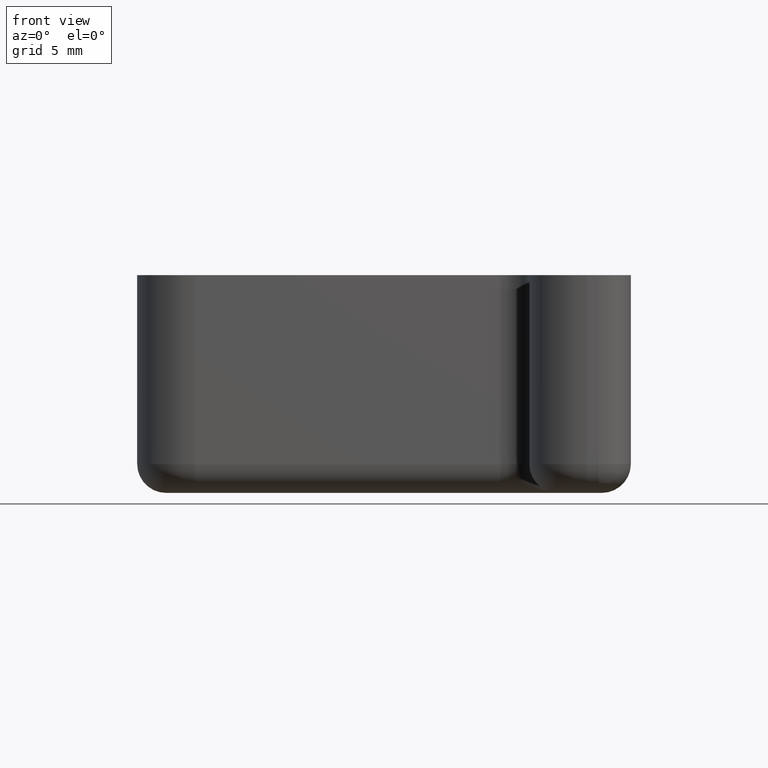
[diagram: clean part render]
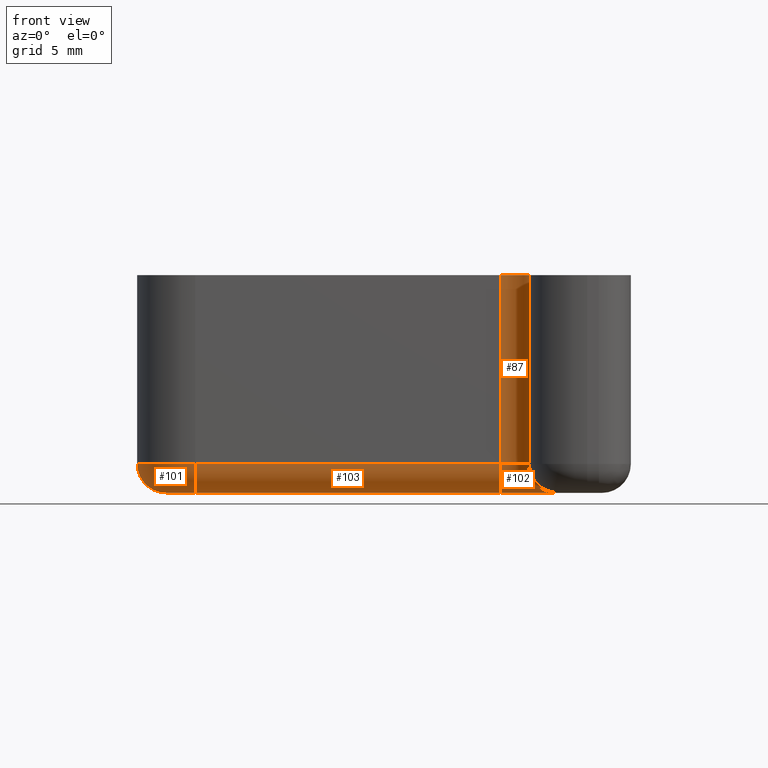
[diagram: same view with one multi-face feature highlighted, each face labeled with its STEP entity id]
A machine part, front view. The highlighted faces form ONE feature: a constant-radius fillet chain: 4 tangent blend faces with common blend radius 2 mm. The faces share edges in the B-rep.
Their STEP definitions:
[1] entity #102 (Torus):
#102 = ADVANCED_FACE( '', ( #170 ), #171, .T. );
#170 = FACE_OUTER_BOUND( '', #315, .T. );
#171 = TOROIDAL_SURFACE( '', #316, 4.00000000000000, 2.00000000000000 );
#315 = EDGE_LOOP( '', ( #555, #556, #557, #558 ) );
#316 = AXIS2_PLACEMENT_3D( '', #559, #560, #561 );
#555 = ORIENTED_EDGE( '', *, *, #725, .T. );
#556 = ORIENTED_EDGE( '', *, *, #708, .F. );
#557 = ORIENTED_EDGE( '', *, *, #723, .F. );
#558 = ORIENTED_EDGE( '', *, *, #695, .F. );
#559 = CARTESIAN_POINT( '', ( -7.00000000000000, -7.00000000000000, -13.0000000000000 ) );
#560 = DIRECTION( '', ( 0.000000000000000, 0.000000000000000, 1.00000000000000 ) );
#561 = DIRECTION( '', ( -1.00000000000000, 1.22460635382238E-016, 0.000000000000000 ) );
#695 = EDGE_CURVE( '', #833, #836, #837, .F. );
#708 = EDGE_CURVE( '', #857, #859, #860, .T. );
#723 = EDGE_CURVE( '', #836, #857, #879, .T. );
#725 = EDGE_CURVE( '', #833, #859, #881, .T. );
#833 = VERTEX_POINT( '', #1021 );
#836 = VERTEX_POINT( '', #1026 );
#837 = CIRCLE( '', #1027, 2.00000000000000 );
#857 = VERTEX_POINT( '', #1054 );
#859 = VERTEX_POINT( '', #1057 );
#860 = CIRCLE( '', #1058, 4.00000000000000 );
#879 = CIRCLE( '', #1080, 2.00000000000000 );
#881 = CIRCLE( '', #1082, 2.00000000000000 );
#1021 = CARTESIAN_POINT( '', ( -7.00000000000001, -5.00000000000000, -13.0000000000000 ) );
#1026 = CARTESIAN_POINT( '', ( -5.00000000000000, -6.99999999999999, -13.0000000000000 ) );
#1027 = AXIS2_PLACEMENT_3D( '', #1201, #1202, #1203 );
#1054 = CARTESIAN_POINT( '', ( -3.00000000000000, -7.00000000000000, -15.0000000000000 ) );
#1057 = CARTESIAN_POINT( '', ( -7.00000000000002, -3.00000000000000, -15.0000000000000 ) );
#1058 = AXIS2_PLACEMENT_3D( '', #1224, #1225, #1226 );
#1080 = AXIS2_PLACEMENT_3D( '', #1263, #1264, #1265 );
#1082 = AXIS2_PLACEMENT_3D( '', #1269, #1270, #1271 );
#1201 = CARTESIAN_POINT( '', ( -7.00000000000000, -7.00000000000000, -13.0000000000000 ) );
#1202 = DIRECTION( '', ( 0.000000000000000, 0.000000000000000, 1.00000000000000 ) );
#1203 = DIRECTION( '', ( -1.00000000000000, 1.22460635382238E-016, 0.000000000000000 ) );
#1224 = CARTESIAN_POINT( '', ( -7.00000000000000, -7.00000000000000, -15.0000000000000 ) );
#1225 = DIRECTION( '', ( 0.000000000000000, 0.000000000000000, 1.00000000000000 ) );
#1226 = DIRECTION( '', ( -1.00000000000000, 1.22460635382238E-016, 0.000000000000000 ) );
#1263 = CARTESIAN_POINT( '', ( -3.00000000000000, -6.99999999999999, -13.0000000000000 ) );
#1264 = DIRECTION( '', ( 1.61226284059457E-015, -1.00000000000000, 1.73472347597681E-015 ) );
#1265 = DIRECTION( '', ( 2.12435339080604E-031, 1.73472347597681E-015, 1.00000000000000 ) );
#1269 = CARTESIAN_POINT( '', ( -7.00000000000001, -3.00000000000000, -13.0000000000000 ) );
#1270 = DIRECTION( '', ( 1.00000000000000, -1.22460635382238E-016, -3.46944695195361E-015 ) );
#1271 = DIRECTION( '', ( 3.46944695195361E-015, -4.24870678161208E-031, 1.00000000000000 ) );
[2] entity #87 (Cylinder):
#87 = ADVANCED_FACE( '', ( #140 ), #141, .F. );
#140 = FACE_OUTER_BOUND( '', #219, .T. );
#141 = CYLINDRICAL_SURFACE( '', #220, 2.00000000000000 );
#219 = EDGE_LOOP( '', ( #451, #452, #453, #454 ) );
#220 = AXIS2_PLACEMENT_3D( '', #455, #456, #457 );
#451 = ORIENTED_EDGE( '', *, *, #694, .F. );
#452 = ORIENTED_EDGE( '', *, *, #695, .T. );
#453 = ORIENTED_EDGE( '', *, *, #696, .T. );
#454 = ORIENTED_EDGE( '', *, *, #647, .F. );
#455 = CARTESIAN_POINT( '', ( -7.00000000000000, -7.00000000000000, -15.0000000000000 ) );
#456 = DIRECTION( '', ( 0.000000000000000, 0.000000000000000, -1.00000000000000 ) );
#457 = DIRECTION( '', ( 1.00000000000000, -1.83690953073357E-016, 0.000000000000000 ) );
#647 = EDGE_CURVE( '', #750, #752, #753, .T. );
#694 = EDGE_CURVE( '', #833, #750, #835, .T. );
#695 = EDGE_CURVE( '', #833, #836, #837, .F. );
#696 = EDGE_CURVE( '', #836, #752, #838, .T. );
#750 = VERTEX_POINT( '', #909 );
#752 = VERTEX_POINT( '', #912 );
#753 = CIRCLE( '', #913, 2.00000000000000 );
#833 = VERTEX_POINT( '', #1021 );
#835 = LINE( '', #1024, #1025 );
#836 = VERTEX_POINT( '', #1026 );
#837 = CIRCLE( '', #1027, 2.00000000000000 );
#838 = LINE( '', #1028, #1029 );
#909 = CARTESIAN_POINT( '', ( -7.00000000000001, -5.00000000000000, 0.000000000000000 ) );
#912 = CARTESIAN_POINT( '', ( -5.00000000000000, -6.99999999999999, 0.000000000000000 ) );
#913 = AXIS2_PLACEMENT_3D( '', #1117, #1118, #1119 );
#1021 = CARTESIAN_POINT( '', ( -7.00000000000001, -5.00000000000000, -13.0000000000000 ) );
#1024 = CARTESIAN_POINT( '', ( -7.00000000000001, -5.00000000000000, -15.0000000000000 ) );
#1025 = VECTOR( '', #1200, 1000.00000000000 );
#1026 = CARTESIAN_POINT( '', ( -5.00000000000000, -6.99999999999999, -13.0000000000000 ) );
#1027 = AXIS2_PLACEMENT_3D( '', #1201, #1202, #1203 );
#1028 = CARTESIAN_POINT( '', ( -5.00000000000000, -6.99999999999999, -15.0000000000000 ) );
#1029 = VECTOR( '', #1204, 1000.00000000000 );
#1117 = CARTESIAN_POINT( '', ( -7.00000000000000, -7.00000000000000, 0.000000000000000 ) );
#1118 = DIRECTION( '', ( 0.000000000000000, 0.000000000000000, -1.00000000000000 ) );
#1119 = DIRECTION( '', ( -6.83670784915046E-016, 1.00000000000000, 0.000000000000000 ) );
#1200 = DIRECTION( '', ( 0.000000000000000, 0.000000000000000, 1.00000000000000 ) );
#1201 = CARTESIAN_POINT( '', ( -7.00000000000000, -7.00000000000000, -13.0000000000000 ) );
#1202 = DIRECTION( '', ( 0.000000000000000, 0.000000000000000, 1.00000000000000 ) );
#1203 = DIRECTION( '', ( -1.00000000000000, 1.22460635382238E-016, 0.000000000000000 ) );
#1204 = DIRECTION( '', ( 0.000000000000000, 0.000000000000000, 1.00000000000000 ) );
[3] entity #103 (Cylinder):
#103 = ADVANCED_FACE( '', ( #172 ), #173, .T. );
#172 = FACE_OUTER_BOUND( '', #317, .T. );
#173 = CYLINDRICAL_SURFACE( '', #318, 2.00000000000000 );
#317 = EDGE_LOOP( '', ( #562, #563, #564, #565 ) );
#318 = AXIS2_PLACEMENT_3D( '', #566, #567, #568 );
#562 = ORIENTED_EDGE( '', *, *, #724, .F. );
#563 = ORIENTED_EDGE( '', *, *, #709, .F. );
#564 = ORIENTED_EDGE( '', *, *, #725, .F. );
#565 = ORIENTED_EDGE( '', *, *, #693, .F. );
#566 = CARTESIAN_POINT( '', ( -28.0000000000000, -2.99999999999999, -13.0000000000000 ) );
#567 = DIRECTION( '', ( 1.00000000000000, -1.22460635382238E-016, 0.000000000000000 ) );
#568 = DIRECTION( '', ( 0.000000000000000, 0.000000000000000, -1.00000000000000 ) );
#693 = EDGE_CURVE( '', #830, #833, #834, .T. );
#709 = EDGE_CURVE( '', #859, #861, #862, .F. );
#724 = EDGE_CURVE( '', #861, #830, #880, .T. );
#725 = EDGE_CURVE( '', #833, #859, #881, .T. );
#830 = VERTEX_POINT( '', #1017 );
#833 = VERTEX_POINT( '', #1021 );
#834 = LINE( '', #1022, #1023 );
#859 = VERTEX_POINT( '', #1057 );
#861 = VERTEX_POINT( '', #1059 );
#862 = LINE( '', #1060, #1061 );
#880 = CIRCLE( '', #1081, 2.00000000000000 );
#881 = CIRCLE( '', #1082, 2.00000000000000 );
#1017 = CARTESIAN_POINT( '', ( -28.0000000000000, -5.00000000000000, -13.0000000000000 ) );
#1021 = CARTESIAN_POINT( '', ( -7.00000000000001, -5.00000000000000, -13.0000000000000 ) );
#1022 = CARTESIAN_POINT( '', ( -7.00000000000001, -5.00000000000000, -13.0000000000000 ) );
#1023 = VECTOR( '', #1199, 1000.00000000000 );
#1057 = CARTESIAN_POINT( '', ( -7.00000000000002, -3.00000000000000, -15.0000000000000 ) );
#1059 = CARTESIAN_POINT( '', ( -28.0000000000000, -3.00000000000000, -15.0000000000000 ) );
#1060 = CARTESIAN_POINT( '', ( -28.0000000000000, -2.99999999999999, -15.0000000000000 ) );
#1061 = VECTOR( '', #1227, 1000.00000000000 );
#1081 = AXIS2_PLACEMENT_3D( '', #1266, #1267, #1268 );
#1082 = AXIS2_PLACEMENT_3D( '', #1269, #1270, #1271 );
#1199 = DIRECTION( '', ( 1.00000000000000, -1.22460635382238E-016, 0.000000000000000 ) );
#1227 = DIRECTION( '', ( 1.00000000000000, -1.22460635382238E-016, 0.000000000000000 ) );
#1266 = CARTESIAN_POINT( '', ( -28.0000000000000, -2.99999999999999, -13.0000000000000 ) );
#1267 = DIRECTION( '', ( -1.00000000000000, 1.22460635382238E-016, 0.000000000000000 ) );
#1268 = DIRECTION( '', ( 0.000000000000000, 0.000000000000000, -1.00000000000000 ) );
#1269 = CARTESIAN_POINT( '', ( -7.00000000000001, -3.00000000000000, -13.0000000000000 ) );
#1270 = DIRECTION( '', ( 1.00000000000000, -1.22460635382238E-016, -3.46944695195361E-015 ) );
#1271 = DIRECTION( '', ( 3.46944695195361E-015, -4.24870678161208E-031, 1.00000000000000 ) );
[4] entity #101 (Torus):
#101 = ADVANCED_FACE( '', ( #168 ), #169, .T. );
#168 = FACE_OUTER_BOUND( '', #313, .T. );
#169 = TOROIDAL_SURFACE( '', #314, 2.00000000000000, 2.00000000000000 );
#313 = EDGE_LOOP( '', ( #548, #549, #550, #551 ) );
#314 = AXIS2_PLACEMENT_3D( '', #552, #553, #554 );
#548 = ORIENTED_EDGE( '', *, *, #724, .T. );
#549 = ORIENTED_EDGE( '', *, *, #691, .F. );
#550 = ORIENTED_EDGE( '', *, *, #722, .F. );
#551 = ORIENTED_EDGE( '', *, *, #710, .F. );
#552 = CARTESIAN_POINT( '', ( -28.0000000000000, -0.999999999999997, -13.0000000000000 ) );
#553 = DIRECTION( '', ( 0.000000000000000, 0.000000000000000, 1.00000000000000 ) );
#554 = DIRECTION( '', ( -1.00000000000000, 1.22460635382238E-016, 0.000000000000000 ) );
#691 = EDGE_CURVE( '', #827, #830, #831, .T. );
#710 = EDGE_CURVE( '', #861, #863, #864, .F. );
#722 = EDGE_CURVE( '', #863, #827, #878, .T. );
#724 = EDGE_CURVE( '', #861, #830, #880, .T. );
#827 = VERTEX_POINT( '', #1012 );
#830 = VERTEX_POINT( '', #1017 );
#831 = CIRCLE( '', #1018, 4.00000000000000 );
#861 = VERTEX_POINT( '', #1059 );
#863 = VERTEX_POINT( '', #1062 );
#864 = CIRCLE( '', #1063, 2.00000000000000 );
#878 = CIRCLE( '', #1079, 2.00000000000000 );
#880 = CIRCLE( '', #1081, 2.00000000000000 );
#1012 = CARTESIAN_POINT( '', ( -32.0000000000000, -1.00000000000000, -13.0000000000000 ) );
#1017 = CARTESIAN_POINT( '', ( -28.0000000000000, -5.00000000000000, -13.0000000000000 ) );
#1018 = AXIS2_PLACEMENT_3D( '', #1195, #1196, #1197 );
#1059 = CARTESIAN_POINT( '', ( -28.0000000000000, -3.00000000000000, -15.0000000000000 ) );
#1062 = CARTESIAN_POINT( '', ( -30.0000000000000, -0.999999999999999, -15.0000000000000 ) );
#1063 = AXIS2_PLACEMENT_3D( '', #1228, #1229, #1230 );
#1079 = AXIS2_PLACEMENT_3D( '', #1260, #1261, #1262 );
#1081 = AXIS2_PLACEMENT_3D( '', #1266, #1267, #1268 );
#1195 = CARTESIAN_POINT( '', ( -28.0000000000000, -0.999999999999997, -13.0000000000000 ) );
#1196 = DIRECTION( '', ( 0.000000000000000, 0.000000000000000, 1.00000000000000 ) );
#1197 = DIRECTION( '', ( -1.00000000000000, 1.22460635382238E-016, 0.000000000000000 ) );
#1228 = CARTESIAN_POINT( '', ( -28.0000000000000, -0.999999999999997, -15.0000000000000 ) );
#1229 = DIRECTION( '', ( 0.000000000000000, 0.000000000000000, 1.00000000000000 ) );
#1230 = DIRECTION( '', ( -1.00000000000000, 1.22460635382238E-016, 0.000000000000000 ) );
#1260 = CARTESIAN_POINT( '', ( -30.0000000000000, -0.999999999999999, -13.0000000000000 ) );
#1261 = DIRECTION( '', ( -7.44901102606165E-016, 1.00000000000000, 0.000000000000000 ) );
#1262 = DIRECTION( '', ( -1.00000000000000, -7.44901102606165E-016, 0.000000000000000 ) );
#1266 = CARTESIAN_POINT( '', ( -28.0000000000000, -2.99999999999999, -13.0000000000000 ) );
#1267 = DIRECTION( '', ( -1.00000000000000, 1.22460635382238E-016, 0.000000000000000 ) );
#1268 = DIRECTION( '', ( 0.000000000000000, 0.000000000000000, -1.00000000000000 ) );